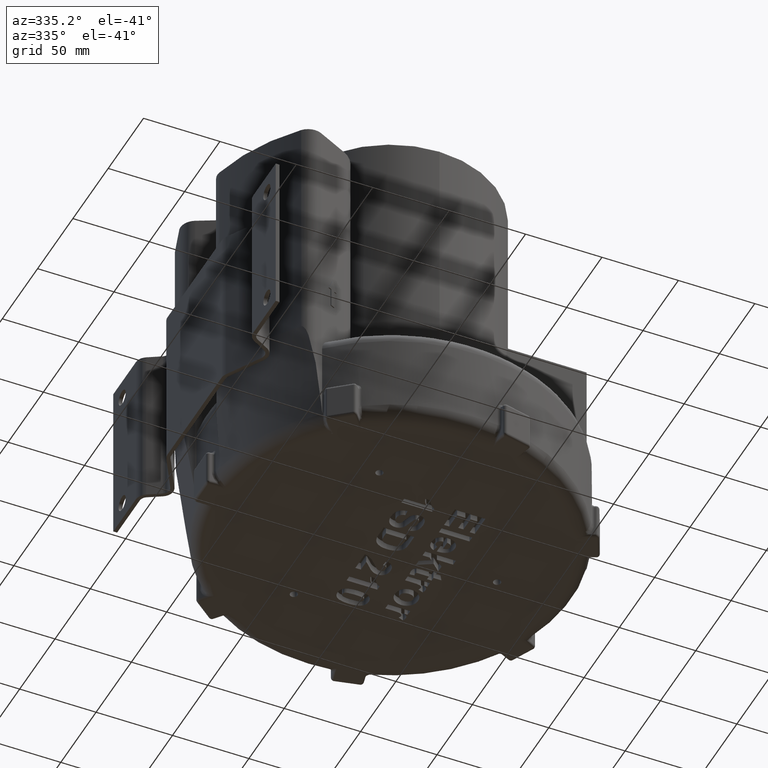
[diagram: clean part render]
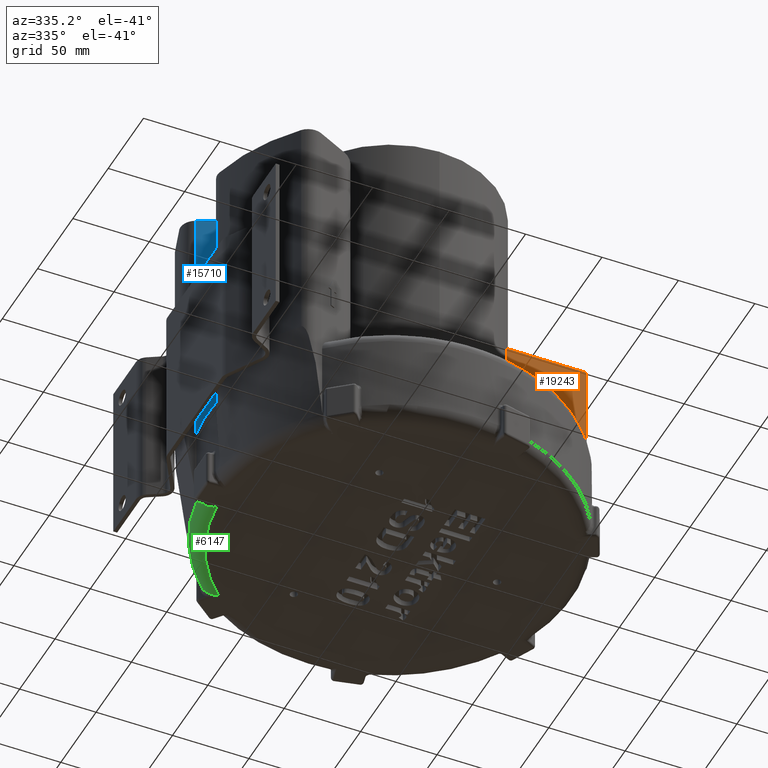
[diagram: same view with three faces highlighted in distinct colors, each labeled with its STEP entity id]
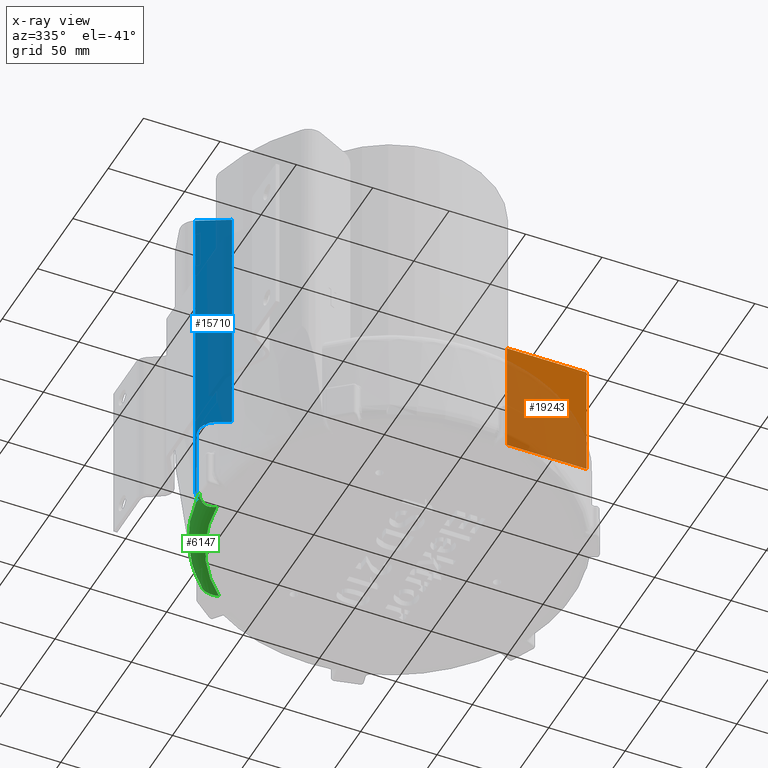
[diagram: x-ray of the same camera — body ghosted, the three highlighted faces saturated]
A machine part, auxiliary view with three faces highlighted in distinct colors.
The next image is the same camera in x-ray (body ghosted, the three faces saturated) — at least one of them is partly hidden behind the body in this view.
Their STEP definitions:

[orange] entity #19243 — the highlighted planar face has unit normal (0, -1, 0).
#19129=CARTESIAN_POINT('',(58.787753826796276,-38.0,78.0));
#19130=VERTEX_POINT('',#19129);
#19148=CARTESIAN_POINT('',(58.787753826796269,-38.000000000000014,1.999999999999993));
#19149=VERTEX_POINT('',#19148);
#19157=CARTESIAN_POINT('',(58.787753826796269,-38.000000000000014,1.999999999999993));
#19158=DIRECTION('',(0.0,0.0,1.0));
#19159=VECTOR('',#19158,76.0);
#19160=LINE('',#19157,#19159);
#19161=EDGE_CURVE('',#19149,#19130,#19160,.T.);
#19195=CARTESIAN_POINT('',(111.00000000000001,-38.0,78.0));
#19196=VERTEX_POINT('',#19195);
#19197=CARTESIAN_POINT('',(111.00000000000001,-38.0,78.0));
#19198=DIRECTION('',(-1.0,0.0,0.0));
#19199=VECTOR('',#19198,52.212246173203738);
#19200=LINE('',#19197,#19199);
#19201=EDGE_CURVE('',#19196,#19130,#19200,.T.);
#19220=CARTESIAN_POINT('',(111.00000000000001,-38.0,78.0));
#19221=DIRECTION('',(0.0,-1.0,0.0));
#19222=DIRECTION('',(0.0,0.0,-1.0));
#19223=AXIS2_PLACEMENT_3D('',#19220,#19221,#19222);
#19224=PLANE('',#19223);
#19225=ORIENTED_EDGE('',*,*,#19161,.F.);
#19226=CARTESIAN_POINT('',(111.00000000000001,-38.000000000000014,2.000000000000002));
#19227=VERTEX_POINT('',#19226);
#19228=CARTESIAN_POINT('',(111.00000000000001,-38.000000000000014,2.000000000000002));
#19229=DIRECTION('',(-1.0,0.0,0.0));
#19230=VECTOR('',#19229,52.212246173203745);
#19231=LINE('',#19228,#19230);
#19232=EDGE_CURVE('',#19227,#19149,#19231,.T.);
#19233=ORIENTED_EDGE('',*,*,#19232,.F.);
#19234=CARTESIAN_POINT('',(111.00000000000001,-38.000000000000014,2.000000000000002));
#19235=DIRECTION('',(0.0,0.0,1.0));
#19236=VECTOR('',#19235,76.0);
#19237=LINE('',#19234,#19236);
#19238=EDGE_CURVE('',#19227,#19196,#19237,.T.);
#19239=ORIENTED_EDGE('',*,*,#19238,.T.);
#19240=ORIENTED_EDGE('',*,*,#19201,.T.);
#19241=EDGE_LOOP('',(#19225,#19233,#19239,#19240));
#19242=FACE_OUTER_BOUND('',#19241,.T.);
#19243=ADVANCED_FACE('',(#19242),#19224,.T.);

[blue] entity #15710 — the highlighted planar face has unit normal (-0.4512, -0.8924, 0).
#6109=CARTESIAN_POINT('',(-118.80028423244143,16.926088334022488,-62.0));
#6110=VERTEX_POINT('',#6109);
#6118=CARTESIAN_POINT('',(-118.73004987260782,16.890576579050482,-63.218693434051481));
#6119=VERTEX_POINT('',#6118);
#6120=CARTESIAN_POINT('',(-118.80028423244141,16.926088334022488,-62.0));
#6121=CARTESIAN_POINT('',(-118.80028423244141,16.926088334022488,-62.389489785889303));
#6122=CARTESIAN_POINT('',(-118.77825841042625,16.914951682441789,-62.802020179198131));
#6123=CARTESIAN_POINT('',(-118.73004987260784,16.890576579050446,-63.218693434051474));
#6124=B_SPLINE_CURVE_WITH_KNOTS('',3,(#6120,#6121,#6122,#6123),.UNSPECIFIED.,.F.,.U.,(4,4),(0.0,0.116846935766789),.UNSPECIFIED.);
#6125=EDGE_CURVE('',#6110,#6119,#6124,.T.);
#6175=CARTESIAN_POINT('',(-118.80028423244143,16.926088334022488,-12.0));
#6176=VERTEX_POINT('',#6175);
#6184=CARTESIAN_POINT('',(-118.80028423244143,16.926088334022488,-12.0));
#6185=DIRECTION('',(0.0,0.0,-1.0));
#6186=VECTOR('',#6185,50.0);
#6187=LINE('',#6184,#6186);
#6188=EDGE_CURVE('',#6176,#6110,#6187,.T.);
#14523=CARTESIAN_POINT('',(-119.55907600625841,17.309747096064783,-56.050304468551985));
#14524=VERTEX_POINT('',#14523);
#14525=CARTESIAN_POINT('',(-119.55907600625841,17.309747096064783,-56.050304468551985));
#14526=CARTESIAN_POINT('',(-119.14304738560224,17.099395546294812,-59.649097139015851));
#14527=CARTESIAN_POINT('',(-118.73004987260782,16.890576579050435,-63.218693434051474));
#14535=(BOUNDED_CURVE()B_SPLINE_CURVE(2,(#14525,#14526,#14527),.UNSPECIFIED.,.F.,.U.)B_SPLINE_CURVE_WITH_KNOTS((3,3),(8.441107971957056,9.197474757690657),.UNSPECIFIED.)CURVE()GEOMETRIC_REPRESENTATION_ITEM()RATIONAL_B_SPLINE_CURVE((1.000166129674588,1.00009050787489,1.0))REPRESENTATION_ITEM(''));
#14536=EDGE_CURVE('',#14524,#6119,#14535,.T.);
#14929=CARTESIAN_POINT('',(-119.55907600625841,17.309747096064786,157.00000000000003));
#14930=VERTEX_POINT('',#14929);
#14931=CARTESIAN_POINT('',(-119.55907600625841,17.309747096064783,-56.050304468551985));
#14932=DIRECTION('',(0.0,0.0,1.0));
#14933=VECTOR('',#14932,213.05030446855201);
#14934=LINE('',#14931,#14933);
#14935=EDGE_CURVE('',#14524,#14930,#14934,.T.);
#15367=CARTESIAN_POINT('',(-109.32838181894377,12.136924192366369,-2.0));
#15368=VERTEX_POINT('',#15367);
#15376=CARTESIAN_POINT('',(-109.3283818189438,12.136924192366385,-1.999999999999999));
#15377=CARTESIAN_POINT('',(-109.92676030931233,12.439475114462834,-2.000000000000001));
#15378=CARTESIAN_POINT('',(-110.58072428107835,12.770131055243407,-2.063004028082554));
#15379=CARTESIAN_POINT('',(-111.86323744546881,13.418592767575666,-2.337062824542527));
#15380=CARTESIAN_POINT('',(-112.49176305615478,13.736386615675302,-2.548256143754612));
#15381=CARTESIAN_POINT('',(-113.5828760414135,14.288072956536455,-3.037546050059627));
#15382=CARTESIAN_POINT('',(-114.14798174717392,14.573800560572629,-3.356594996681972));
#15383=CARTESIAN_POINT('',(-115.20637286292042,15.108942135950079,-4.119126121453593));
#15384=CARTESIAN_POINT('',(-115.69955014707122,15.358301436925196,-4.562796728977388));
#15385=CARTESIAN_POINT('',(-116.51394840087768,15.770075834917217,-5.445087559130231));
#15386=CARTESIAN_POINT('',(-116.91305310588383,15.971870348684385,-5.961583213250005));
#15387=CARTESIAN_POINT('',(-117.60330764846347,16.320875454483083,-7.077956322778625));
#15388=CARTESIAN_POINT('',(-117.89431522732875,16.468014117954283,-7.677944215057955));
#15389=CARTESIAN_POINT('',(-118.32515890065432,16.685856424691927,-8.8078063200318));
#15390=CARTESIAN_POINT('',(-118.50735967957871,16.777980414035717,-9.439857938737145));
#15391=CARTESIAN_POINT('',(-118.74495509922622,16.898112929587828,-10.73307378595592));
#15392=CARTESIAN_POINT('',(-118.80028423244141,16.926088334022488,-11.394253125544356));
#15393=CARTESIAN_POINT('',(-118.80028423244141,16.926088334022488,-12.000000000000002));
#15394=B_SPLINE_CURVE_WITH_KNOTS('',3,(#15376,#15377,#15378,#15379,#15380,#15381,#15382,#15383,#15384,#15385,#15386,#15387,#15388,#15389,#15390,#15391,#15392,#15393),.UNSPECIFIED.,.F.,.U.,(4,2,2,2,2,2,2,2,4),(-1.527366417418425,-1.326211131537737,-1.12505584565705,-0.931133799875382,-0.737211754093714,-0.550329939383551,-0.363448124673387,-0.181724062336694,0.0),.UNSPECIFIED.);
#15395=EDGE_CURVE('',#15368,#6176,#15394,.T.);
#15408=CARTESIAN_POINT('',(-99.95149869036814,7.395803509378696,157.00000000000003));
#15409=VERTEX_POINT('',#15408);
#15417=CARTESIAN_POINT('',(-99.951498690368155,7.395803509378698,-2.0));
#15418=VERTEX_POINT('',#15417);
#15419=CARTESIAN_POINT('',(-99.95149869036814,7.395803509378698,157.00000000000003));
#15420=DIRECTION('',(0.0,0.0,-1.0));
#15421=VECTOR('',#15420,159.00000000000003);
#15422=LINE('',#15419,#15421);
#15423=EDGE_CURVE('',#15409,#15418,#15422,.T.);
#15685=CARTESIAN_POINT('',(-77.909859170861552,-3.748845685877442,-2.0));
#15686=DIRECTION('',(-0.451219942998513,-0.892412776152616,0.0));
#15687=DIRECTION('',(0.0,0.0,-1.0));
#15688=AXIS2_PLACEMENT_3D('',#15685,#15686,#15687);
#15689=PLANE('',#15688);
#15690=ORIENTED_EDGE('',*,*,#14536,.T.);
#15691=ORIENTED_EDGE('',*,*,#6125,.F.);
#15692=ORIENTED_EDGE('',*,*,#6188,.F.);
#15693=ORIENTED_EDGE('',*,*,#15395,.F.);
#15694=CARTESIAN_POINT('',(-99.951498690368169,7.395803509378709,-2.0));
#15695=DIRECTION('',(-0.892412776152615,0.451219942998514,0.0));
#15696=VECTOR('',#15695,10.507338508757558);
#15697=LINE('',#15694,#15696);
#15698=EDGE_CURVE('',#15418,#15368,#15697,.T.);
#15699=ORIENTED_EDGE('',*,*,#15698,.F.);
#15700=ORIENTED_EDGE('',*,*,#15423,.F.);
#15701=CARTESIAN_POINT('',(-99.95149869036814,7.395803509378695,157.00000000000003));
#15702=DIRECTION('',(-0.892412776152615,0.451219942998513,0.0));
#15703=VECTOR('',#15702,21.97142156617566);
#15704=LINE('',#15701,#15703);
#15705=EDGE_CURVE('',#15409,#14930,#15704,.T.);
#15706=ORIENTED_EDGE('',*,*,#15705,.T.);
#15707=ORIENTED_EDGE('',*,*,#14935,.F.);
#15708=EDGE_LOOP('',(#15690,#15691,#15692,#15693,#15699,#15700,#15706,#15707));
#15709=FACE_OUTER_BOUND('',#15708,.T.);
#15710=ADVANCED_FACE('',(#15709),#15689,.T.);

[green] entity #6147 — the highlighted toroidal blend (fillet) surface has major radius 110 mm and minor (blend) radius 10 mm.
#1972=CARTESIAN_POINT('',(-83.684141322163242,86.005607324012374,-62.0));
#1973=VERTEX_POINT('',#1972);
#1980=CARTESIAN_POINT('',(-84.056348621555884,85.64187209777387,-62.0));
#1981=VERTEX_POINT('',#1980);
#1982=CARTESIAN_POINT('',(0.0,0.0,-62.0));
#1983=DIRECTION('',(0.0,0.0,-1.0));
#1984=DIRECTION('',(0.0,-1.0,0.0));
#1985=AXIS2_PLACEMENT_3D('',#1982,#1983,#1984);
#1986=CIRCLE('',#1985,120.0);
#1987=EDGE_CURVE('',#1981,#1973,#1986,.T.);
#2589=CARTESIAN_POINT('',(-109.70870511548671,8.000001367698637,-72.0));
#2590=VERTEX_POINT('',#2589);
#2597=CARTESIAN_POINT('',(-74.656909729432584,80.785802153914148,-72.0));
#2598=VERTEX_POINT('',#2597);
#2599=CARTESIAN_POINT('',(0.0,0.0,-72.0));
#2600=DIRECTION('',(0.0,0.0,1.0));
#2601=DIRECTION('',(0.0,-1.0,0.0));
#2602=AXIS2_PLACEMENT_3D('',#2599,#2600,#2601);
#2603=CIRCLE('',#2602,110.0);
#2604=EDGE_CURVE('',#2598,#2590,#2603,.T.);
#4901=CARTESIAN_POINT('',(-82.121853156350184,83.972257164035142,-68.666666666663843));
#4902=VERTEX_POINT('',#4901);
#4910=CARTESIAN_POINT('',(-82.121853156350184,83.972257164035128,-68.666666666663843));
#4911=CARTESIAN_POINT('',(-82.686136359134196,84.707383616116289,-67.637952272610335));
#4912=CARTESIAN_POINT('',(-83.44928068363528,85.700270414594954,-65.480408792526077));
#4913=CARTESIAN_POINT('',(-83.684141322163214,86.005607324012402,-63.03748656075215));
#4914=CARTESIAN_POINT('',(-83.684141322163214,86.005607324012402,-62.000000000000014));
#4915=B_SPLINE_CURVE_WITH_KNOTS('',3,(#4910,#4911,#4912,#4913,#4914),.UNSPECIFIED.,.F.,.U.,(4,1,4),(0.0,0.497993549161026,0.871488711031795),.UNSPECIFIED.);
#4916=EDGE_CURVE('',#4902,#1973,#4915,.T.);
#4995=CARTESIAN_POINT('',(-74.656909729432613,80.785802153914148,-72.000000000000014));
#4996=CARTESIAN_POINT('',(-74.661630180683048,80.787155156833578,-72.000000000000014));
#4997=CARTESIAN_POINT('',(-74.666351414816717,80.78850838447147,-71.999997139687665));
#4998=CARTESIAN_POINT('',(-75.26449542295579,80.959951976339994,-71.999365681463118));
#4999=CARTESIAN_POINT('',(-76.461667380772525,81.303446406870393,-71.912676786086649));
#5000=CARTESIAN_POINT('',(-78.189904387102956,81.837121560921204,-71.526718836118576));
#5001=CARTESIAN_POINT('',(-79.80133610976344,82.424862264511233,-70.866798752752672));
#5002=CARTESIAN_POINT('',(-81.194342369763575,83.101770511259701,-69.926420119536004));
#5003=CARTESIAN_POINT('',(-81.880556891769189,83.657905671722204,-69.106560924337046));
#5004=CARTESIAN_POINT('',(-82.121853156350184,83.972257164035099,-68.666666666663843));
#5005=B_SPLINE_CURVE_WITH_KNOTS('',3,(#4995,#4996,#4997,#4998,#4999,#5000,#5001,#5002,#5003,#5004),.UNSPECIFIED.,.F.,.U.,(4,2,1,1,1,1,4),(-0.001693483272755,0.0,0.212949778772987,0.425899557545974,0.638849336318962,0.851799115091949,1.064748893864936),.UNSPECIFIED.);
#5006=EDGE_CURVE('',#2598,#4902,#5005,.T.);
#5871=CARTESIAN_POINT('',(-119.41809987207527,11.803280177266746,-62.0));
#5872=VERTEX_POINT('',#5871);
#5925=CARTESIAN_POINT('',(-116.85429196201949,11.849607128976398,-68.666666666663914));
#5926=VERTEX_POINT('',#5925);
#5927=CARTESIAN_POINT('',(-119.41809987207526,11.803280177266753,-62.000000000000014));
#5928=CARTESIAN_POINT('',(-119.41809987207526,11.803280177266753,-63.383314878617334));
#5929=CARTESIAN_POINT('',(-118.9005884306662,11.812317497701809,-65.823837228969509));
#5930=CARTESIAN_POINT('',(-117.54921906281095,11.83673004655158,-67.895131169917732));
#5931=CARTESIAN_POINT('',(-116.85429196201949,11.849607128976402,-68.666666666663914));
#5932=B_SPLINE_CURVE_WITH_KNOTS('',3,(#5927,#5928,#5929,#5930,#5931),.UNSPECIFIED.,.F.,.U.,(4,1,4),(8.881784E-016,0.497993356302237,0.871488373528914),.UNSPECIFIED.);
#5933=EDGE_CURVE('',#5872,#5926,#5932,.T.);
#6016=CARTESIAN_POINT('',(-116.8542919620195,11.849607128976389,-68.666666666663914));
#6017=CARTESIAN_POINT('',(-116.45807537161217,11.856949069860917,-69.106561964387637));
#6018=CARTESIAN_POINT('',(-115.59513588083567,11.66684486834269,-69.926402350585747));
#6019=CARTESIAN_POINT('',(-114.19790647171533,11.000769240914202,-70.86701867948122));
#6020=CARTESIAN_POINT('',(-112.97509759253053,10.254409328906641,-71.41799605641377));
#6021=CARTESIAN_POINT('',(-111.98642212341545,9.597864711536442,-71.71974608249478));
#6022=CARTESIAN_POINT('',(-111.23314953392136,9.079171604044337,-71.881804091790741));
#6023=CARTESIAN_POINT('',(-110.47689556924711,8.546612534796802,-71.978037577706772));
#6024=CARTESIAN_POINT('',(-109.97221836398224,8.187513071176536,-71.999668385536268));
#6025=CARTESIAN_POINT('',(-109.71669434194897,8.005686336882237,-71.999997279404823));
#6026=CARTESIAN_POINT('',(-109.71269963069983,8.0028437861409,-72.000000000000014));
#6027=CARTESIAN_POINT('',(-109.70870511548668,8.000001367698692,-72.000000000000014));
#6028=B_SPLINE_CURVE_WITH_KNOTS('',3,(#6016,#6017,#6018,#6019,#6020,#6021,#6022,#6023,#6024,#6025,#6026,#6027),.UNSPECIFIED.,.F.,.U.,(4,1,1,1,1,1,1,2,4),(0.0,0.212950282254194,0.425900564508387,0.638850846762581,0.745325987889678,0.851801129016775,0.958276270143872,1.064751411270969,1.066442160991732),.UNSPECIFIED.);
#6029=EDGE_CURVE('',#5926,#2590,#6028,.T.);
#6100=CARTESIAN_POINT('',(0.0,0.0,-62.0));
#6101=DIRECTION('',(0.0,0.0,1.0));
#6102=DIRECTION('',(0.0,-1.0,0.0));
#6103=AXIS2_PLACEMENT_3D('',#6100,#6101,#6102);
#6104=TOROIDAL_SURFACE('',#6103,110.0,10.0);
#6105=ORIENTED_EDGE('',*,*,#5006,.F.);
#6106=ORIENTED_EDGE('',*,*,#2604,.T.);
#6107=ORIENTED_EDGE('',*,*,#6029,.F.);
#6108=ORIENTED_EDGE('',*,*,#5933,.F.);
#6109=CARTESIAN_POINT('',(-118.80028423244143,16.926088334022488,-62.0));
#6110=VERTEX_POINT('',#6109);
#6111=CARTESIAN_POINT('',(0.0,0.0,-62.0));
#6112=DIRECTION('',(0.0,0.0,-1.0));
#6113=DIRECTION('',(0.0,-1.0,0.0));
#6114=AXIS2_PLACEMENT_3D('',#6111,#6112,#6113);
#6115=CIRCLE('',#6114,120.0);
#6116=EDGE_CURVE('',#5872,#6110,#6115,.T.);
#6117=ORIENTED_EDGE('',*,*,#6116,.T.);
#6118=CARTESIAN_POINT('',(-118.73004987260782,16.890576579050482,-63.218693434051481));
#6119=VERTEX_POINT('',#6118);
#6120=CARTESIAN_POINT('',(-118.80028423244141,16.926088334022488,-62.0));
#6121=CARTESIAN_POINT('',(-118.80028423244141,16.926088334022488,-62.389489785889303));
#6122=CARTESIAN_POINT('',(-118.77825841042625,16.914951682441789,-62.802020179198131));
#6123=CARTESIAN_POINT('',(-118.73004987260784,16.890576579050446,-63.218693434051474));
#6124=B_SPLINE_CURVE_WITH_KNOTS('',3,(#6120,#6121,#6122,#6123),.UNSPECIFIED.,.F.,.U.,(4,4),(0.0,0.116846935766789),.UNSPECIFIED.);
#6125=EDGE_CURVE('',#6110,#6119,#6124,.T.);
#6126=ORIENTED_EDGE('',*,*,#6125,.T.);
#6127=CARTESIAN_POINT('',(-83.986114261722307,85.606360342801821,-63.218693434051467));
#6128=VERTEX_POINT('',#6127);
#6129=CARTESIAN_POINT('',(0.0,0.0,-63.218693434051467));
#6130=DIRECTION('',(0.0,0.0,1.0));
#6131=DIRECTION('',(-1.0,0.0,0.0));
#6132=AXIS2_PLACEMENT_3D('',#6129,#6130,#6131);
#6133=CIRCLE('',#6132,119.92546151641321);
#6134=EDGE_CURVE('',#6128,#6119,#6133,.T.);
#6135=ORIENTED_EDGE('',*,*,#6134,.F.);
#6136=CARTESIAN_POINT('',(-83.986114261722292,85.606360342801821,-63.218693434051481));
#6137=CARTESIAN_POINT('',(-84.034322799540732,85.630735446193171,-62.802020179198131));
#6138=CARTESIAN_POINT('',(-84.056348621555884,85.64187209777387,-62.389489785889303));
#6139=CARTESIAN_POINT('',(-84.056348621555884,85.64187209777387,-62.0));
#6140=B_SPLINE_CURVE_WITH_KNOTS('',3,(#6136,#6137,#6138,#6139),.UNSPECIFIED.,.F.,.U.,(4,4),(-0.116846935766789,0.0),.UNSPECIFIED.);
#6141=EDGE_CURVE('',#6128,#1981,#6140,.T.);
#6142=ORIENTED_EDGE('',*,*,#6141,.T.);
#6143=ORIENTED_EDGE('',*,*,#1987,.T.);
#6144=ORIENTED_EDGE('',*,*,#4916,.F.);
#6145=EDGE_LOOP('',(#6105,#6106,#6107,#6108,#6117,#6126,#6135,#6142,#6143,#6144));
#6146=FACE_OUTER_BOUND('',#6145,.T.);
#6147=ADVANCED_FACE('',(#6146),#6104,.T.);